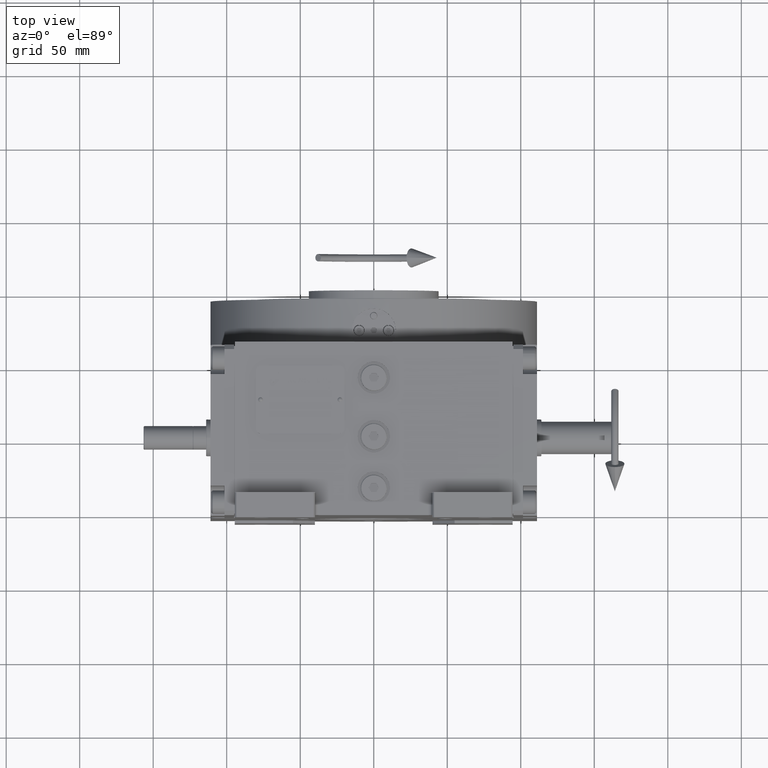
[diagram: clean part render]
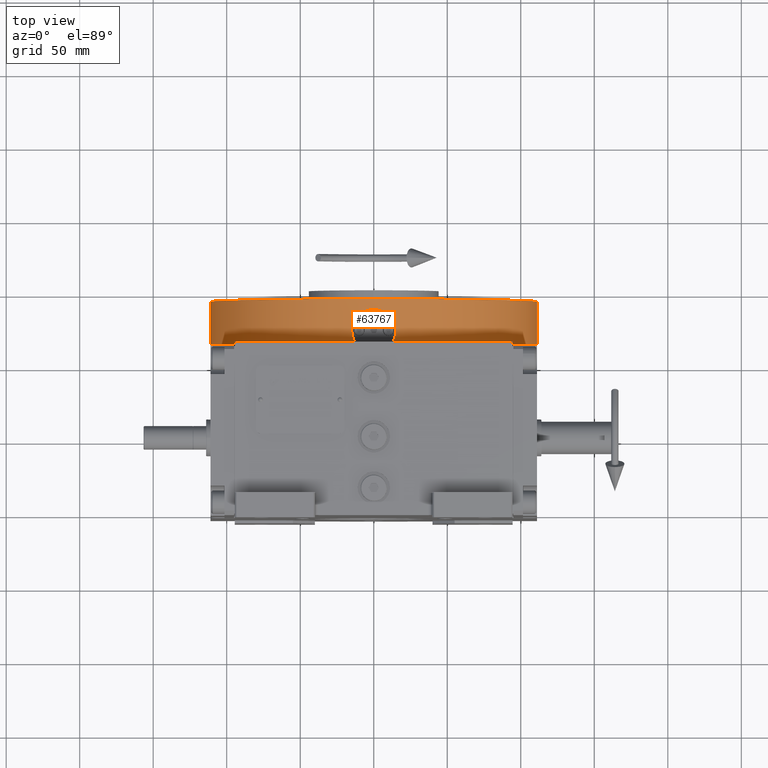
[diagram: same view with one face highlighted and labeled with its STEP entity id]
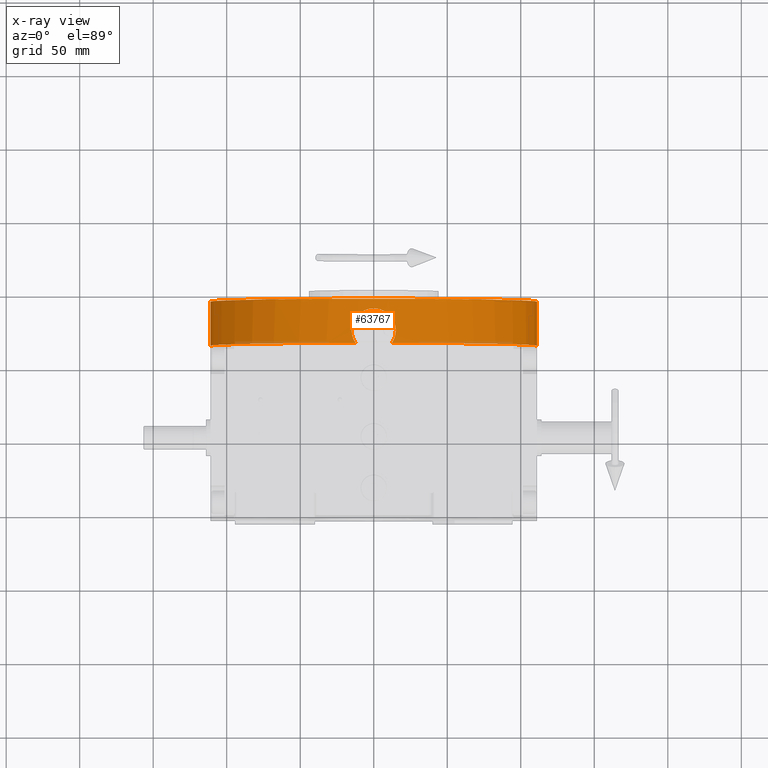
[diagram: x-ray of the same camera — body ghosted, the highlighted face saturated]
A machine part, top view. The second image highlights one B-rep face of the part: STEP entity #63767.
The next image is the same camera in x-ray: the body ghosted, the highlighted face saturated — about 3% of this face is hidden behind the body in this view.
In plain terms, the highlighted cylindrical surface (partial cylindrical patch) has radius 111 mm, axis along (0, -1, 0).
Its self-contained STEP definition (entity closure, byte-faithful):
#326 = LINE ( 'NONE', #62287, #58669 ) ;
#403 = CARTESIAN_POINT ( 'NONE',  ( 13.67120868968883585, -110.1550445810021159, 14.69266741368028661 ) ) ;
#2729 = CARTESIAN_POINT ( 'NONE',  ( -14.92902940756067665, -109.9914765006813724, 6.992278458960984544 ) ) ;
#3073 = VERTEX_POINT ( 'NONE', #17348 ) ;
#3075 = CARTESIAN_POINT ( 'NONE',  ( -14.01719661900627223, -110.1114117750710335, 3.156973181291045094 ) ) ;
#3290 = LINE ( 'NONE', #9132, #30950 ) ;
#3300 = VERTEX_POINT ( 'NONE', #12500 ) ;
#3747 = AXIS2_PLACEMENT_3D ( 'NONE', #36321, #10155, #16364 ) ;
#3886 = CARTESIAN_POINT ( 'NONE',  ( -14.23437111462542504, -110.0841764135788736, 13.33441362819726095 ) ) ;
#4100 = ORIENTED_EDGE ( 'NONE', *, *, #42700, .T. ) ;
#4225 = CARTESIAN_POINT ( 'NONE',  ( 5.754785659470635473, -110.8534944668084989, 22.37888231139476858 ) ) ;
#4538 = CARTESIAN_POINT ( 'NONE',  ( 14.54860699406516744, -110.0426713706116715, 4.770969639303543453 ) ) ;
#4888 = CARTESIAN_POINT ( 'NONE',  ( 12.79061008394213594, -110.2614562685912745, 0.6300699406160789051 ) ) ;
#5893 = CARTESIAN_POINT ( 'NONE',  ( 12.49089272913519544, -110.2959706763026020, 16.84979656627310618 ) ) ;
#7019 = EDGE_CURVE ( 'NONE', #41074, #50257, #3290, .T. ) ;
#7806 = ORIENTED_EDGE ( 'NONE', *, *, #13992, .T. ) ;
#8130 = DIRECTION ( 'NONE',  ( 0.000000000000000000, 0.000000000000000000, 1.000000000000000000 ) ) ;
#8713 = CARTESIAN_POINT ( 'NONE',  ( -6.639755865926521672, -110.8020839931811707, 21.95980936459932309 ) ) ;
#8867 = EDGE_CURVE ( 'NONE', #3300, #50257, #30968, .T. ) ;
#9132 = CARTESIAN_POINT ( 'NONE',  ( 111.0000000000000000, 0.000000000000000000, 0.000000000000000000 ) ) ;
#10054 = CARTESIAN_POINT ( 'NONE',  ( 13.88615082730060912, -110.1281404534645105, 2.806289983460253712 ) ) ;
#10155 = DIRECTION ( 'NONE',  ( 0.000000000000000000, 0.000000000000000000, 1.000000000000000000 ) ) ;
#10756 = CARTESIAN_POINT ( 'NONE',  ( 0.000000000000000000, 0.000000000000000000, 30.00000000000000000 ) ) ;
#11062 = CARTESIAN_POINT ( 'NONE',  ( 11.28600025733720358, -110.4251965464134742, 18.39295342521939958 ) ) ;
#12020 = CARTESIAN_POINT ( 'NONE',  ( -111.0000000000000000, 4.531193156845210737E-15, 0.000000000000000000 ) ) ;
#12500 = CARTESIAN_POINT ( 'NONE',  ( -111.0000000000000000, 4.531193156845210737E-15, 30.00000000000000000 ) ) ;
#13177 = ORIENTED_EDGE ( 'NONE', *, *, #59814, .T. ) ;
#13551 = CARTESIAN_POINT ( 'NONE',  ( -11.28584015030522458, -110.4252130203693980, 18.39312312461864707 ) ) ;
#13751 = CARTESIAN_POINT ( 'NONE',  ( -14.88662442570948308, -109.9972347522098914, 6.618314069757381901 ) ) ;
#13992 = EDGE_CURVE ( 'NONE', #30246, #41074, #34525, .T. ) ;
#14024 = CARTESIAN_POINT ( 'NONE',  ( 111.0000000000000000, 0.000000000000000000, 30.00000000000000000 ) ) ;
#14415 = CARTESIAN_POINT ( 'NONE',  ( -14.54855790297209062, -110.0426777389478730, 4.770800955029033119 ) ) ;
#14555 = CARTESIAN_POINT ( 'NONE',  ( 14.98581507868787988, -109.9837541035309130, 7.744811308917072701 ) ) ;
#14559 = CARTESIAN_POINT ( 'NONE',  ( -4.831113224141963869, -110.8958199698845277, 22.70937072224167252 ) ) ;
#15253 = CARTESIAN_POINT ( 'NONE',  ( 14.08267207994797943, -110.1030530331438797, 3.332153254856725866 ) ) ;
#15590 = DIRECTION ( 'NONE',  ( -1.000000000000000000, 0.000000000000000000, 0.000000000000000000 ) ) ;
#16364 = DIRECTION ( 'NONE',  ( 0.1113442080568318032, -0.9937819012903167382, 0.000000000000000000 ) ) ;
#16747 = CARTESIAN_POINT ( 'NONE',  ( 15.00016352440266054, -109.9819527780179982, 8.499999734383401062 ) ) ;
#17348 = CARTESIAN_POINT ( 'NONE',  ( -15.00018157460869617, -109.9817751208699832, 8.499999499349094378 ) ) ;
#19067 = CARTESIAN_POINT ( 'NONE',  ( -12.99490879206749128, -110.2369590043951177, 16.00846849540673489 ) ) ;
#19599 = CARTESIAN_POINT ( 'NONE',  ( -14.98584238347750386, -109.9837503902704867, 7.745164755432557335 ) ) ;
#21075 = CARTESIAN_POINT ( 'NONE',  ( 9.155131626163095504, -110.6248335917129992, 20.42328748179446407 ) ) ;
#21774 = CARTESIAN_POINT ( 'NONE',  ( 7.505816495866814542, -110.7467874697829444, 21.49621537291857010 ) ) ;
#22035 = CARTESIAN_POINT ( 'NONE',  ( -12.35920709430827813, -110.3097910432252036, 0.000000000000000000 ) ) ;
#22297 = B_SPLINE_CURVE_WITH_KNOTS ( 'NONE', 3,
 ( #22035, #63957, #66699, #24419, #61544, #3075, #50564, #40251, #50236, #14415, #55718, #13751, #2729, #19599, #23411, #24774 ),
 .UNSPECIFIED., .F., .F.,
 ( 4, 2, 2, 2, 2, 2, 2, 4 ),
 ( 0.000000000000000000, 0.03463656218074161880, 0.05195484327111242473, 0.06061398381629784504, 0.06927312436148326535, 0.1039096865422249744, 0.1212279676325958566, 0.1385462487229667528 ),
 .UNSPECIFIED. ) ;
#23411 = CARTESIAN_POINT ( 'NONE',  ( -15.00022701432521721, -109.9817857171703679, 8.123627962369196709 ) ) ;
#24230 = CARTESIAN_POINT ( 'NONE',  ( 12.35920709430827813, -110.3097910432252036, 0.000000000000000000 ) ) ;
#24419 = CARTESIAN_POINT ( 'NONE',  ( -13.66038436090427233, -110.1563481902365140, 2.292789680092141236 ) ) ;
#24774 = CARTESIAN_POINT ( 'NONE',  ( -15.00018157460869617, -109.9817751208699832, 8.499999499349094378 ) ) ;
#24921 = CARTESIAN_POINT ( 'NONE',  ( -9.155039958905485165, -110.6248419871347579, 20.42335287459646764 ) ) ;
#25249 = CARTESIAN_POINT ( 'NONE',  ( -13.45969729556515837, -110.1811750425752479, 15.13912647065042449 ) ) ;
#25427 = CARTESIAN_POINT ( 'NONE',  ( -12.35920709430827813, -110.3097910432252036, 0.000000000000000000 ) ) ;
#25504 = DIRECTION ( 'NONE',  ( 0.000000000000000000, 0.000000000000000000, 1.000000000000000000 ) ) ;
#25567 = CARTESIAN_POINT ( 'NONE',  ( 14.26734174738254168, -110.0792722425702834, 3.866814090078468880 ) ) ;
#25632 = EDGE_CURVE ( 'NONE', #3073, #52974, #52761, .T. ) ;
#25714 = FACE_OUTER_BOUND ( 'NONE', #49292, .T. ) ;
#25746 = EDGE_CURVE ( 'NONE', #41916, #55608, #40451, .T. ) ;
#26582 = CARTESIAN_POINT ( 'NONE',  ( 15.00067630021841936, -109.9817244393827167, 9.482195243194942336 ) ) ;
#26945 = CARTESIAN_POINT ( 'NONE',  ( 14.90452256169294820, -109.9949681922320508, 10.45750335553337074 ) ) ;
#29719 = CARTESIAN_POINT ( 'NONE',  ( 0.9889394874797472479, -110.9999984638126591, 23.50000436735706444 ) ) ;
#30055 = CARTESIAN_POINT ( 'NONE',  ( -12.49084425736467807, -110.2959761272646801, 16.84988908953092590 ) ) ;
#30246 = VERTEX_POINT ( 'NONE', #24230 ) ;
#30403 = CARTESIAN_POINT ( 'NONE',  ( -14.90453354374295891, -109.9949668255244575, 10.45730428033681747 ) ) ;
#30543 = CYLINDRICAL_SURFACE ( 'NONE', #55686, 111.0000000000000000 ) ;
#30950 = VECTOR ( 'NONE', #8130, 1000.000000000000000 ) ;
#30968 = CIRCLE ( 'NONE', #48571, 111.0000000000000000 ) ;
#31051 = CARTESIAN_POINT ( 'NONE',  ( 13.66037569775399518, -110.1563492564877862, 2.292729208048646772 ) ) ;
#32062 = CARTESIAN_POINT ( 'NONE',  ( 14.51900455847551186, -110.0465189228315381, 12.39434505026231470 ) ) ;
#33559 = ORIENTED_EDGE ( 'NONE', *, *, #25632, .T. ) ;
#33799 = DIRECTION ( 'NONE',  ( -1.000000000000000000, -2.560514363099460107E-16, 0.000000000000000000 ) ) ;
#33859 = AXIS2_PLACEMENT_3D ( 'NONE', #54079, #60275, #33799 ) ;
#34525 = CIRCLE ( 'NONE', #3747, 111.0000000000000142 ) ;
#34554 = CARTESIAN_POINT ( 'NONE',  ( -9.910765466444351190, -110.5588729355499851, 19.80286059959883715 ) ) ;
#34887 = CARTESIAN_POINT ( 'NONE',  ( -10.95345950841066340, -110.4587870611709377, 18.75960009898650682 ) ) ;
#35549 = CARTESIAN_POINT ( 'NONE',  ( -1.964708668282122650, -110.9867875124339918, 23.40400608141958472 ) ) ;
#35562 = ORIENTED_EDGE ( 'NONE', *, *, #25746, .T. ) ;
#35888 = CARTESIAN_POINT ( 'NONE',  ( 14.88666930942511080, -109.9972286734328577, 6.618332331495899723 ) ) ;
#36321 = CARTESIAN_POINT ( 'NONE',  ( -5.684341886080798963E-14, 5.684341886080798963E-14, 0.000000000000000000 ) ) ;
#36694 = DIRECTION ( 'NONE',  ( 0.000000000000000000, 0.000000000000000000, -1.000000000000000000 ) ) ;
#36897 = CARTESIAN_POINT ( 'NONE',  ( 11.90814556711609207, -110.3598382713341550, 17.63536541623847498 ) ) ;
#37238 = CARTESIAN_POINT ( 'NONE',  ( 12.99501050598395580, -110.2369471174213515, 16.00826603433885609 ) ) ;
#39717 = CARTESIAN_POINT ( 'NONE',  ( -15.00071831401525380, -109.9817187090293658, 9.481922053172848308 ) ) ;
#40251 = CARTESIAN_POINT ( 'NONE',  ( -14.20723929514453765, -110.0870487048050705, 3.685604386667276078 ) ) ;
#40397 = CARTESIAN_POINT ( 'NONE',  ( 4.831313870564001078, -110.8958109121368949, 22.70931602902088642 ) ) ;
#40451 = CIRCLE ( 'NONE', #33859, 111.0000000000000000 ) ;
#40552 = CARTESIAN_POINT ( 'NONE',  ( 111.0000000000000000, 0.000000000000000000, 0.000000000000000000 ) ) ;
#41074 = VERTEX_POINT ( 'NONE', #40552 ) ;
#41739 = CARTESIAN_POINT ( 'NONE',  ( 10.95369226189671608, -110.4587641356199015, 18.75934940849483112 ) ) ;
#41916 = VERTEX_POINT ( 'NONE', #12020 ) ;
#42700 = EDGE_CURVE ( 'NONE', #52974, #30246, #65898, .T. ) ;
#42742 = CARTESIAN_POINT ( 'NONE',  ( 15.00016352440266054, -109.9819527780179982, 8.499999734383401062 ) ) ;
#45190 = CARTESIAN_POINT ( 'NONE',  ( -3.888354573746293230, -110.9328771847478521, 22.99548474712409885 ) ) ;
#45540 = CARTESIAN_POINT ( 'NONE',  ( 3.408693875964968978, -110.9486936330835647, 23.11598592882077696 ) ) ;
#45878 = DIRECTION ( 'NONE',  ( 0.000000000000000000, 0.000000000000000000, 1.000000000000000000 ) ) ;
#46198 = CARTESIAN_POINT ( 'NONE',  ( 3.888704021194341998, -110.9328646191554952, 22.99538984600222236 ) ) ;
#46547 = CARTESIAN_POINT ( 'NONE',  ( 14.20718950667102831, -110.0870551266232269, 3.685462657117679619 ) ) ;
#47221 = CARTESIAN_POINT ( 'NONE',  ( 14.23434392197853349, -110.0841797345521940, 13.33443317041088605 ) ) ;
#47551 = CARTESIAN_POINT ( 'NONE',  ( 7.930576881569017189, -110.7170877096086201, 21.24141663976412531 ) ) ;
#47697 = DIRECTION ( 'NONE',  ( 1.000000000000000000, 0.000000000000000000, 0.000000000000000000 ) ) ;
#48571 = AXIS2_PLACEMENT_3D ( 'NONE', #10756, #45878, #15590 ) ;
#49292 = EDGE_LOOP ( 'NONE', ( #7806, #61746, #58164, #61159, #35562, #13177, #33559, #4100 ) ) ;
#50236 = CARTESIAN_POINT ( 'NONE',  ( -14.26736596312561467, -110.0792690963544942, 3.866874469922335411 ) ) ;
#50257 = VERTEX_POINT ( 'NONE', #14024 ) ;
#50564 = CARTESIAN_POINT ( 'NONE',  ( -14.08270934551654641, -110.1030482703059192, 3.332271771852771014 ) ) ;
#50700 = CARTESIAN_POINT ( 'NONE',  ( 1.964787938511459497, -110.9867868697359370, 23.40400139933716162 ) ) ;
#51393 = CARTESIAN_POINT ( 'NONE',  ( -0.9885946096268576344, -111.0000015359194521, 23.49999561208149146 ) ) ;
#52046 = CARTESIAN_POINT ( 'NONE',  ( 13.16976447597571109, -110.2164501629939650, 1.282010985205249698 ) ) ;
#52053 = CARTESIAN_POINT ( 'NONE',  ( 6.639902048379165755, -110.8020754179939615, 21.95972879247906562 ) ) ;
#52525 = CARTESIAN_POINT ( 'NONE',  ( 0.000000000000000000, 0.000000000000000000, 0.000000000000000000 ) ) ;
#52709 = CARTESIAN_POINT ( 'NONE',  ( 15.00016352440266054, -109.9819527780179982, 8.499999734383401062 ) ) ;
#52761 = B_SPLINE_CURVE_WITH_KNOTS ( 'NONE', 3,
 ( #67526, #39717, #30403, #56184, #3886, #60686, #25249, #19067, #30055, #61681, #13551, #34887, #34554, #24921, #62027, #55528, #8713, #66836, #14559, #45190, #55867, #35549, #51393, #29719, #50700, #45540, #46198, #40397, #4225, #52053, #21774, #47551, #21075, #58198, #41739, #11062, #36897, #5893, #37238, #53059, #403, #47221, #32062, #26945, #26582, #42742 ),
 .UNSPECIFIED., .F., .F.,
 ( 4, 2, 2, 2, 1, 2, 2, 2, 2, 1, 2, 2, 2, 2, 2, 1, 2, 2, 2, 2, 1, 2, 2, 2, 4 ),
 ( 0.1385462487229667528, 0.1837282274512066493, 0.2289102061794465459, 0.2515011955435664803, 0.2740921849076863315, 0.2966831742718062381, 0.3192741636359260893, 0.3644561423641659026, 0.3870471317282856982, 0.4096381210924056049, 0.4322291104565254560, 0.4548200998206453072, 0.5000020785488850095, 0.5451840572771247118, 0.5677750466412444519, 0.5903660360053643030, 0.6129570253694840432, 0.6355480147336038943, 0.6807299934618435966, 0.7033209828259633367, 0.7259119721900831879, 0.7485029615542029280, 0.7710939509183227791, 0.8162759296465627035, 0.8614579083748025168 ),
 .UNSPECIFIED. ) ;
#52974 = VERTEX_POINT ( 'NONE', #16747 ) ;
#53059 = CARTESIAN_POINT ( 'NONE',  ( 13.45989550771997756, -110.1811509321854601, 15.13875466142018134 ) ) ;
#54079 = CARTESIAN_POINT ( 'NONE',  ( 4.263256414560599853E-14, 2.842170943040399481E-14, 0.000000000000000000 ) ) ;
#55528 = CARTESIAN_POINT ( 'NONE',  ( -7.505576193284978714, -110.7468035710190435, 21.49636203183942129 ) ) ;
#55608 = VERTEX_POINT ( 'NONE', #25427 ) ;
#55686 = AXIS2_PLACEMENT_3D ( 'NONE', #52525, #36694, #47697 ) ;
#55718 = CARTESIAN_POINT ( 'NONE',  ( -14.71739435327715562, -110.0200493689661414, 5.503857179243130560 ) ) ;
#55867 = CARTESIAN_POINT ( 'NONE',  ( -3.408483206793232689, -110.9486999150929876, 23.11604407734272115 ) ) ;
#56184 = CARTESIAN_POINT ( 'NONE',  ( -14.51887944269257780, -110.0465355512536689, 12.39498808193250134 ) ) ;
#58164 = ORIENTED_EDGE ( 'NONE', *, *, #8867, .F. ) ;
#58198 = CARTESIAN_POINT ( 'NONE',  ( 9.910851678336527470, -110.5588658279260557, 19.80277067397713253 ) ) ;
#58669 = VECTOR ( 'NONE', #25504, 1000.000000000000000 ) ;
#58887 = CARTESIAN_POINT ( 'NONE',  ( 12.35920709430827813, -110.3097910432252036, 0.000000000000000000 ) ) ;
#59513 = EDGE_CURVE ( 'NONE', #41916, #3300, #326, .T. ) ;
#59814 = EDGE_CURVE ( 'NONE', #55608, #3073, #22297, .T. ) ;
#60275 = DIRECTION ( 'NONE',  ( 0.000000000000000000, 0.000000000000000000, 1.000000000000000000 ) ) ;
#60686 = CARTESIAN_POINT ( 'NONE',  ( -13.67115137196836727, -110.1550517433764043, 14.69277020048659033 ) ) ;
#61159 = ORIENTED_EDGE ( 'NONE', *, *, #59513, .F. ) ;
#61544 = CARTESIAN_POINT ( 'NONE',  ( -13.81090885456181461, -110.1375413436830257, 2.635180560142441841 ) ) ;
#61675 = CARTESIAN_POINT ( 'NONE',  ( 15.00019318453401596, -109.9817903311494405, 8.123535051293776732 ) ) ;
#61681 = CARTESIAN_POINT ( 'NONE',  ( -11.90806301232918152, -110.3598472896125458, 17.63546682239084262 ) ) ;
#61746 = ORIENTED_EDGE ( 'NONE', *, *, #7019, .T. ) ;
#62023 = CARTESIAN_POINT ( 'NONE',  ( 14.92905650393711703, -109.9914728157634727, 6.992198174230364494 ) ) ;
#62027 = CARTESIAN_POINT ( 'NONE',  ( -7.930321500829378145, -110.7171062041697525, 21.24156919897701812 ) ) ;
#62287 = CARTESIAN_POINT ( 'NONE',  ( -111.0000000000000000, 1.359357947053561722E-14, 0.000000000000000000 ) ) ;
#62358 = CARTESIAN_POINT ( 'NONE',  ( 14.71746435414367049, -110.0200399874456991, 5.504056977119158311 ) ) ;
#63767 = ADVANCED_FACE ( 'NONE', ( #25714 ), #30543, .T. ) ;
#63957 = CARTESIAN_POINT ( 'NONE',  ( -12.79060159067035940, -110.2614572201849654, 0.6300730862795703713 ) ) ;
#65898 = B_SPLINE_CURVE_WITH_KNOTS ( 'NONE', 3,
 ( #52709, #61675, #14555, #62023, #35888, #62358, #4538, #25567, #46547, #15253, #10054, #31051, #52046, #4888, #58887 ),
 .UNSPECIFIED., .F., .F.,
 ( 4, 2, 2, 2, 2, 1, 2, 4 ),
 ( 0.8614579083748025168, 0.8787756698279521883, 0.8960934312811019709, 0.9307289541874013139, 0.9393878349139761497, 0.9480467156405509854, 0.9653644770937006570, 1.000000000000000000 ),
 .UNSPECIFIED. ) ;
#66699 = CARTESIAN_POINT ( 'NONE',  ( -13.16975709974511943, -110.2164510765917811, 1.282029642087552324 ) ) ;
#66836 = CARTESIAN_POINT ( 'NONE',  ( -5.754673046354830568, -110.8535004859885618, 22.37892337038986312 ) ) ;
#67526 = CARTESIAN_POINT ( 'NONE',  ( -15.00018157460869617, -109.9817751208699832, 8.499999499349094378 ) ) ;